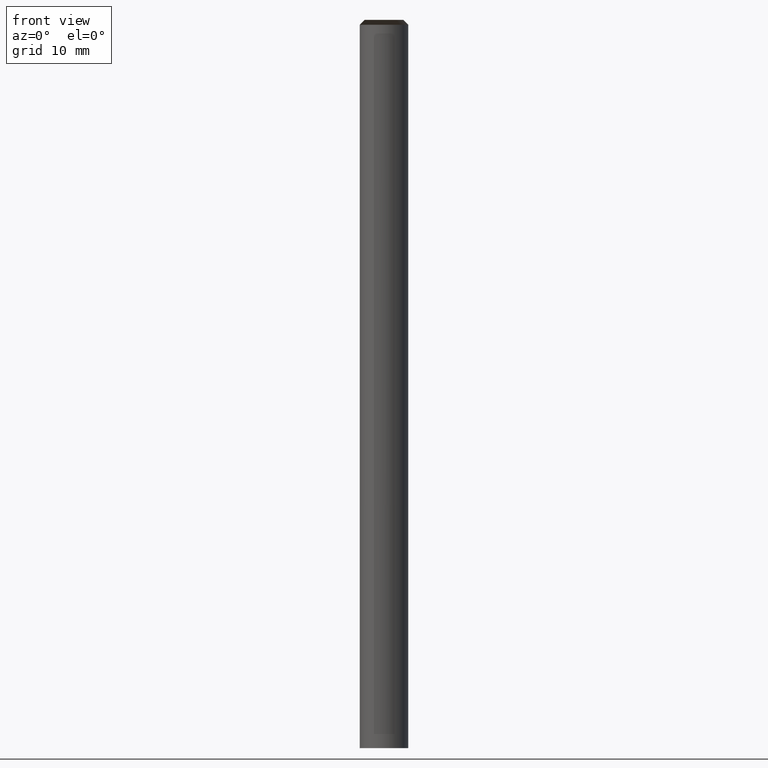
[diagram: clean part render]
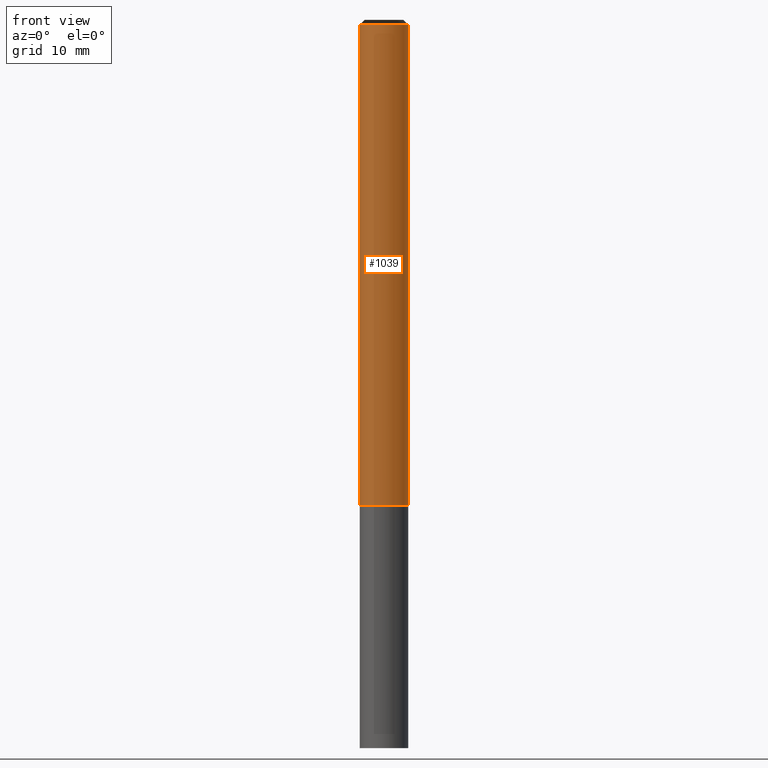
[diagram: same view with one face highlighted and labeled with its STEP entity id]
A machine part, front view. The second image highlights one B-rep face of the part: STEP entity #1039.
In plain terms, the highlighted face is a freeform B-spline surface patch.
Its self-contained STEP definition (entity closure, byte-faithful):
#791=CARTESIAN_POINT('',(2.5,0.0,0.0));
#795=CARTESIAN_POINT('',(-2.5,0.0,0.0));
#799=CARTESIAN_POINT('',(-2.5,-2.5,0.0));
#800=CARTESIAN_POINT('',(0.0,-2.5,0.0));
#801=CARTESIAN_POINT('',(2.5,-2.5,0.0));
#802=CARTESIAN_POINT('',(2.5,0.0,49.5));
#806=CARTESIAN_POINT('',(-2.5,0.0,49.5));
#813=CARTESIAN_POINT('',(-2.5,-2.5,49.5));
#814=CARTESIAN_POINT('',(0.0,-2.5,49.5));
#815=CARTESIAN_POINT('',(2.5,-2.5,49.5));
#1020=(
BOUNDED_SURFACE()
B_SPLINE_SURFACE(1,2,(
(#795,#799,#800,#801,#791),
(#806,#813,#814,#815,#802)
), .UNSPECIFIED.,.F.,.F.,.F.)
B_SPLINE_SURFACE_WITH_KNOTS((2,2),(3,2,3),(
0.0,1.0),(
0.0,0.5,1.0), .UNSPECIFIED.)
GEOMETRIC_REPRESENTATION_ITEM()
RATIONAL_B_SPLINE_SURFACE(((1.0,0.707106781187,1.0,0.707106781187,1.0),
(1.0,0.707106781187,1.0,0.707106781187,1.0)
))
REPRESENTATION_ITEM('')
SURFACE()
);
#1021=(
BOUNDED_CURVE()
B_SPLINE_CURVE(2,(#791,#801,#800,#799,#795),.UNSPECIFIED.,.F.,.F.)
B_SPLINE_CURVE_WITH_KNOTS((3,2,3),
(0.0,0.5,1.0),.UNSPECIFIED.)
CURVE()
GEOMETRIC_REPRESENTATION_ITEM()
RATIONAL_B_SPLINE_CURVE((1.0,0.707106781187,1.0,0.707106781187,1.0))
REPRESENTATION_ITEM('')
);
#1022=(
BOUNDED_CURVE()
B_SPLINE_CURVE(1,(#795,#806),.UNSPECIFIED.,.F.,.F.)
B_SPLINE_CURVE_WITH_KNOTS((2,2),
(0.0,1.0),.UNSPECIFIED.)
CURVE()
GEOMETRIC_REPRESENTATION_ITEM()
RATIONAL_B_SPLINE_CURVE((1.0,1.0))
REPRESENTATION_ITEM('')
);
#1023=(
BOUNDED_CURVE()
B_SPLINE_CURVE(2,(#806,#813,#814,#815,#802),.UNSPECIFIED.,.F.,.F.)
B_SPLINE_CURVE_WITH_KNOTS((3,2,3),
(0.0,0.5,1.0),.UNSPECIFIED.)
CURVE()
GEOMETRIC_REPRESENTATION_ITEM()
RATIONAL_B_SPLINE_CURVE((1.0,0.707106781187,1.0,0.707106781187,1.0))
REPRESENTATION_ITEM('')
);
#1024=(
BOUNDED_CURVE()
B_SPLINE_CURVE(1,(#802,#791),.UNSPECIFIED.,.F.,.F.)
B_SPLINE_CURVE_WITH_KNOTS((2,2),
(0.0,1.0),.UNSPECIFIED.)
CURVE()
GEOMETRIC_REPRESENTATION_ITEM()
RATIONAL_B_SPLINE_CURVE((1.0,1.0))
REPRESENTATION_ITEM('')
);
#1025=VERTEX_POINT('',#791);
#1026=VERTEX_POINT('',#795);
#1027=VERTEX_POINT('',#802);
#1028=VERTEX_POINT('',#806);
#1029=EDGE_CURVE('',#1025,#1026,#1021,.T.);
#1030=EDGE_CURVE('',#1026,#1028,#1022,.T.);
#1031=EDGE_CURVE('',#1028,#1027,#1023,.T.);
#1032=EDGE_CURVE('',#1027,#1025,#1024,.T.);
#1033=ORIENTED_EDGE('',*,*,#1029,.T.);
#1034=ORIENTED_EDGE('',*,*,#1030,.T.);
#1035=ORIENTED_EDGE('',*,*,#1031,.T.);
#1036=ORIENTED_EDGE('',*,*,#1032,.T.);
#1037=EDGE_LOOP('',(#1033,#1034,#1035,#1036));
#1038=FACE_OUTER_BOUND('',#1037,.T.);
#1039=ADVANCED_FACE('',(#1038),#1020,.T.);